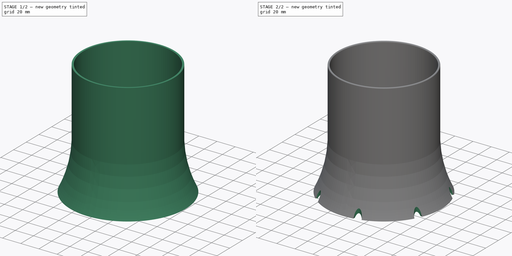
[diagram: build sequence overview — one tinted view per stage of 2, left to right]
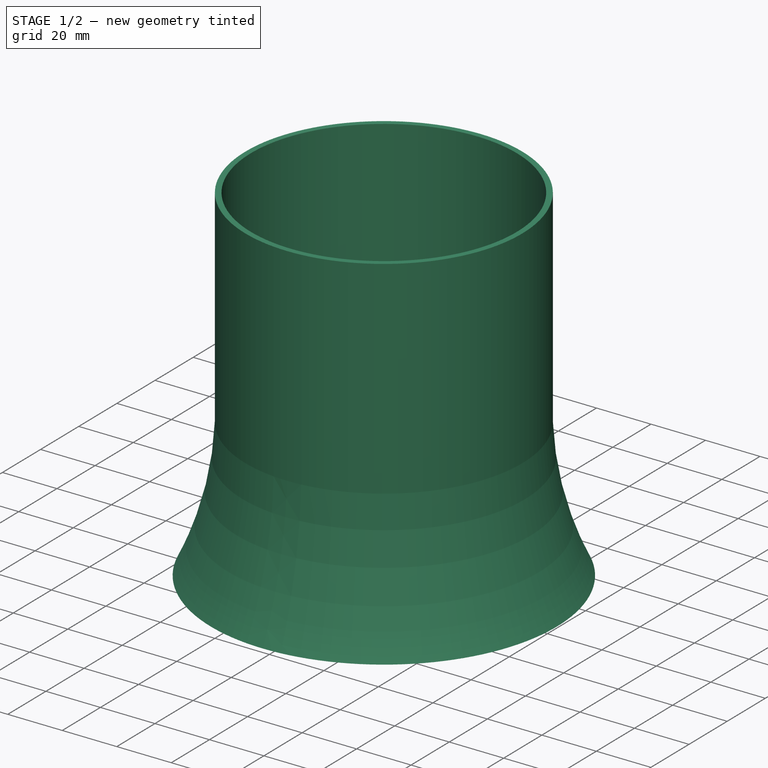
[diagram: stage 1 of 2 — iso view after this stage's code; geometry added in this stage tinted green]
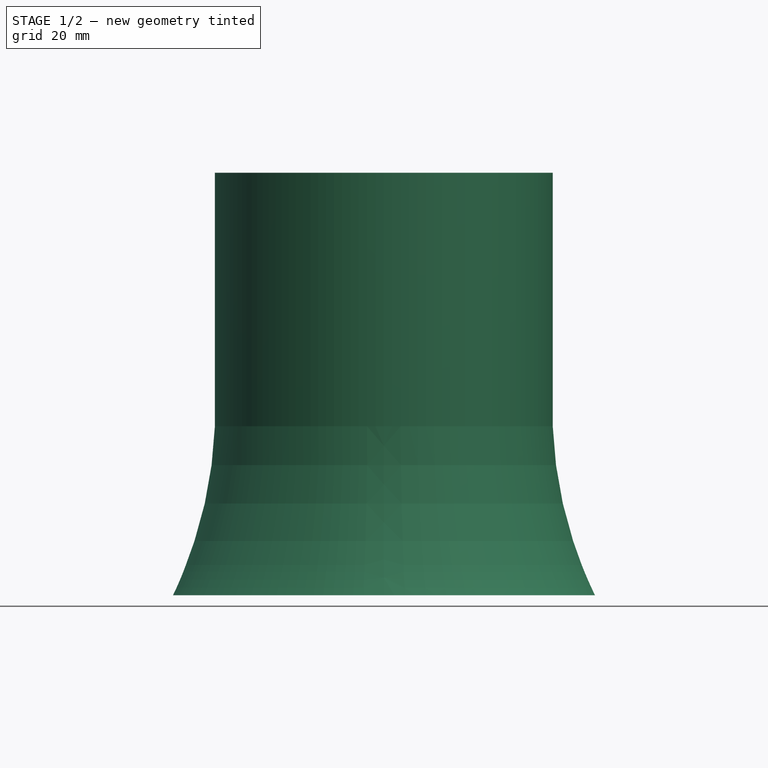
[diagram: stage 1 of 2 — front view after this stage's code; geometry added in this stage tinted green]
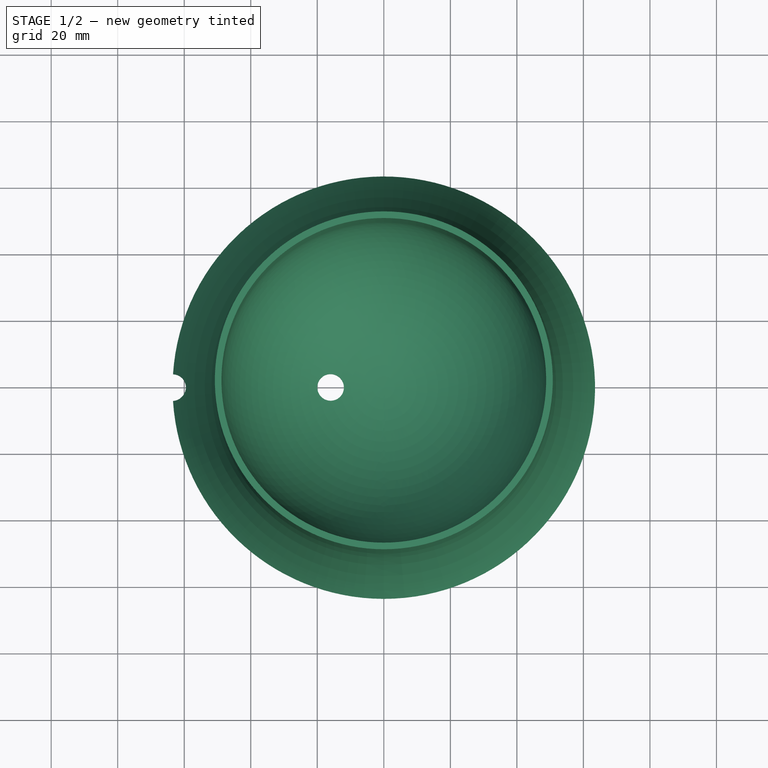
[diagram: stage 1 of 2 — top view after this stage's code; geometry added in this stage tinted green]
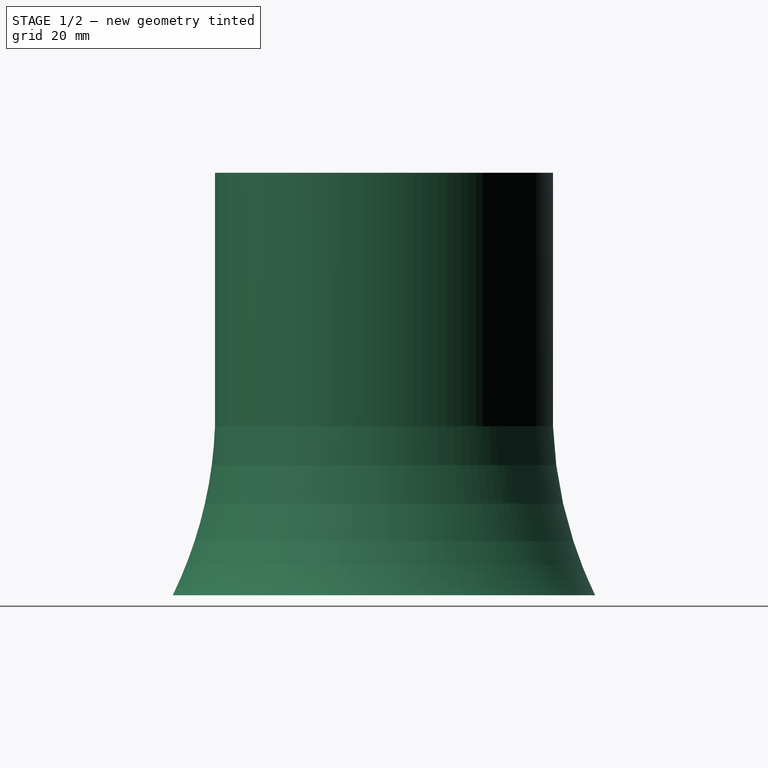
[diagram: stage 1 of 2 — right view after this stage's code; geometry added in this stage tinted green]
FCSTD DOCUMENT  (FreeCAD 2023.131R26244 +5365 (Git))
Label: Silverware Drain Caddy
License: All rights reserved
LicenseURL: http://en.wikipedia.org/wiki/All_rights_reserved
objects: Sketcher::SketchObject×2, Spreadsheet::Sheet×1, PartDesign::Revolution×1, PartDesign::Pocket×1, PartDesign::PolarPattern×1, PartDesign::Fillet×1, PartDesign::Body×1
note: 17 computed .brp shape members not serialized (recipe doc carries the construction recipe); baked Part::Feature solids carry a one-line shape summary decoded from their .brp

FEATURE [Spreadsheet::Sheet] Spreadsheet  label="Parameters"
  PythonMode = false
  ShowCells = 0
  TreeRank = 1
  cells = A2=Internal Diameter; B2(Internal_Diameter)=101.6; A3=Internal Base Offset; B3(Internal_Base_Offset)=0; A4=Outer Base Diameter; B4(Base_Diameter)=127; A5=Overall Height; B5(Height)=127; A6=Wall Thickness; B6(Wall_Thickness)=2; A7=Center Drain Hole Diameter; B7(Center_Hole_Diameter)=8; A8=Outer Relief Hole Count; B8(Base_Hole_Count)=7
FEATURE [Sketcher::SketchObject] Sketch  label="Profile Sketch"
  ArcFitTolerance = 1e-06
  AttachmentSupport = -> [YZ_Plane,XZ_Plane]
  ExternalBSplineMaxDegree = 5
  ExternalBSplineTolerance = 0.0001
  FullyConstrained = true
  InternalTolerance = 1e-06
  InvalidShape = false
  MakeInternals = false
  Placement = pos=(0,0,0) rot=(0.57735,0.57735,0.57735;2.0944rad)
  Support = -> [YZ_Plane,XZ_Plane]
  TreeRank = 12
  ValidateShape = true
  expr: Constraints[14] = max(<<Parameters>>.Height, <<Parameters>>.Internal_Diameter / 2 + <<Parameters>>.Internal_Base_Offset)
  expr: Constraints[15] = max(<<Parameters>>.Height, <<Parameters>>.Internal_Diameter / 2 + <<Parameters>>.Internal_Base_Offset)
  expr: Constraints[1] = <<Parameters>>.Internal_Diameter / 2 + <<Parameters>>.Internal_Base_Offset
  expr: Constraints[28] = <<Parameters>>.Base_Diameter / 2
  expr: Constraints[2] = <<Parameters>>.Internal_Diameter
  expr: Constraints[30] = <<Parameters>>.Base_Diameter
  expr: Constraints[33] = <<Parameters>>.Wall_Thickness
  expr: Constraints[35] = <<Parameters>>.Base_Diameter
  expr: Constraints[39] = <<Parameters>>.Wall_Thickness
  expr: Constraints[4] = <<Parameters>>.Internal_Diameter - <<Parameters>>.Wall_Thickness * 2
  expr: Constraints[7] = <<Parameters>>.Internal_Diameter / 2
  sketch-geometry (16):
    g0: ArcOfCircle CenterX=0 CenterY=50.8 CenterZ=0 NormalX=0 NormalY=0 NormalZ=1 AngleXU=0 Radius=50.8 StartAngle=3.35414 EndAngle=4.71239
    g1: ArcOfCircle CenterX=0 CenterY=50.8 CenterZ=0 NormalX=0 NormalY=0 NormalZ=1 AngleXU=0 Radius=48.8 StartAngle=3.14159 EndAngle=4.71239
    g2: LineSegment [constr] StartX=-50.8 StartY=50.8 StartZ=0 EndX=50.8 EndY=50.8 EndZ=0
    g3: GeomPoint [constr] X=-48.8 Y=50.8 Z=0
    g4: LineSegment StartX=-50.8 StartY=50.8 StartZ=0 EndX=-50.8 EndY=127 EndZ=0
    g5: LineSegment StartX=-48.8 StartY=50.8 StartZ=0 EndX=-48.8 EndY=127 EndZ=0
    g6: LineSegment StartX=-50.8 StartY=127 StartZ=0 EndX=-48.8 EndY=127 EndZ=0
    g7: GeomPoint [constr] X=0 Y=2 Z=0
    g8: GeomPoint [constr] X=0 Y=0 Z=0
    g9: LineSegment StartX=0 StartY=2 StartZ=0 EndX=0 EndY=0 EndZ=0
    g10: GeomPoint [constr] X=-48.8 Y=50.8 Z=0
    g11: LineSegment [constr] StartX=0 StartY=0 StartZ=0 EndX=-63.5 EndY=0 EndZ=0
    g12: ArcOfCircle CenterX=-177.8 CenterY=55.5625 CenterZ=0 NormalX=0 NormalY=0 NormalZ=1 AngleXU=0 Radius=127.089 StartAngle=5.83071 EndAngle=6.2457
    g13: LineSegment StartX=-63.5 StartY=0 StartZ=0 EndX=-61.5 EndY=0 EndZ=0
    g14: ArcOfCircle CenterX=-176.657 CenterY=55.8157 CenterZ=0 NormalX=0 NormalY=0 NormalZ=1 AngleXU=0 Radius=127.971 StartAngle=5.83186 EndAngle=6.15994
    g15: LineSegment [constr] StartX=-49.6569 StartY=40.0838 StartZ=0 EndX=-51.6569 EndY=40.0838 EndZ=0
  constraints (42):
    c: PointOnObject(g0,g-2)
    c: DistanceY(g-1,g0) = 50.8
    c: Diameter(g0) = 101.6
    c: Coincident(g1,g0)
    c: Diameter(g1) = 97.6
    c: PointOnObject(g0,g2)
    c: Symmetric(g2,g2,g-2)
    c: DistanceX(g-1,g2) = 50.8
    c: PointOnObject(g3,g1)
    c: PointOnObject(g3,g2)
    c: Coincident(g4,g2)
    c: Vertical(g4)
    c: Coincident(g5,g3)
    c: Vertical(g5)
    c: DistanceY(g-1,g5) = 127
    c: DistanceY(g-1,g4) = 127
    c: Coincident(g6,g4)
    c: Coincident(g6,g5)
    c: PointOnObject(g1,g2)
    c: Coincident(g9,g7)
    c: Coincident(g9,g8)
    c: Coincident(g1,g9)
    c: PointOnObject(g1,g-2)
    c: Coincident(g0,g9)
    c: PointOnObject(g0,g-2)
    c: Coincident(g10,g1)
    c: Coincident(g11,g-1)
    c: PointOnObject(g11,g-1)
    c: DistanceX(g11,g11) = 63.5
    c: Coincident(g12,g11)
    c: DistanceX(g12,g12) = 127
    c: Coincident(g13,g12)
    c: PointOnObject(g13,g11)
    c: DistanceX(g12,g13) = 2
    c: Coincident(g14,g13)
    c: DistanceX(g14,g14) = 127
    c: Coincident(g15,g14)
    c: PointOnObject(g15,g12)
    c: Horizontal(g15)
    c: DistanceX(g15,g14) = 2
    c: Coincident(g0,g14)
    c: Coincident(g12,g4)
FEATURE [PartDesign::Revolution] Revolution  label="Profile"
  AddSubType = 0
  Angle = 360
  Axis = (-2e-16,3e-16,1)
  Base = (0,0,0)
  ClaimChildren = false
  Fit = 0
  FitJoin = 0
  InnerFit = 0
  InnerFitJoin = 0
  InvalidShape = false
  Linearize = true
  NewSolid = false
  Profile = -> Sketch
  ReferenceAxis = -> Sketch [V_Axis]
  Suppress = false
  TreeRank = 13
  ValidateShape = true
  _ProfileBasedVersion = 1
FEATURE [Sketcher::SketchObject] Sketch001  label="Hole Sketch"
  ArcFitTolerance = 1e-06
  AttachmentOffset = pos=(0,0,-5) rot=(0,0,1;0rad)
  AttachmentSupport = -> [XY_Plane]
  ExternalBSplineMaxDegree = 5
  ExternalBSplineTolerance = 0.0001
  FullyConstrained = true
  InternalTolerance = 1e-06
  InvalidShape = false
  MakeInternals = false
  MapMode = 5
  Placement = pos=(0,0,-5) rot=(0,0,1;0rad)
  Support = -> [XY_Plane]
  TreeRank = 14
  ValidateShape = true
  expr: Constraints[0] = <<Parameters>>.Base_Diameter
  expr: Constraints[3] = <<Parameters>>.Center_Hole_Diameter
  expr: Constraints[7] = <<Parameters>>.Center_Hole_Diameter * 2
  sketch-geometry (3):
    g0: Circle [constr] CenterX=0 CenterY=0 CenterZ=0 NormalX=0 NormalY=0 NormalZ=1 AngleXU=0 Radius=63.5
    g1: Circle CenterX=-63.5 CenterY=0 CenterZ=0 NormalX=0 NormalY=0 NormalZ=1 AngleXU=0 Radius=4
    g2: Circle CenterX=-16 CenterY=0 CenterZ=0 NormalX=0 NormalY=0 NormalZ=1 AngleXU=0 Radius=4
  constraints (8):
    c: Diameter(g0) = 127
    c: PointOnObject(g1,g0)
    c: PointOnObject(g1,g-1)
    c: Diameter(g1) = 8
    c: Coincident(g0,g-1)
    c: Equal(g1,g2)
    c: PointOnObject(g2,g-1)
    c: DistanceX(g2,g0) = 16
FEATURE [PartDesign::Pocket] Pocket  label="Holes"
  AddSubType = 1
  AutoTaperInnerAngle = true
  BaseFeature = -> Revolution
  CheckUpToFaceLimits = true
  ClaimChildren = false
  Fit = 0
  FitJoin = 0
  InnerFit = 0
  InnerFitJoin = 0
  InvalidShape = false
  Length = 5
  Length2 = 100
  Linearize = true
  NewSolid = false
  Profile = -> Sketch001
  Reversed = true
  Suppress = false
  TaperInnerAngle = 0
  TaperInnerAngleRev = 0
  TreeRank = 15
  Type = 1
  ValidateShape = true
  _ProfileBasedVersion = 1
  _Version = 1
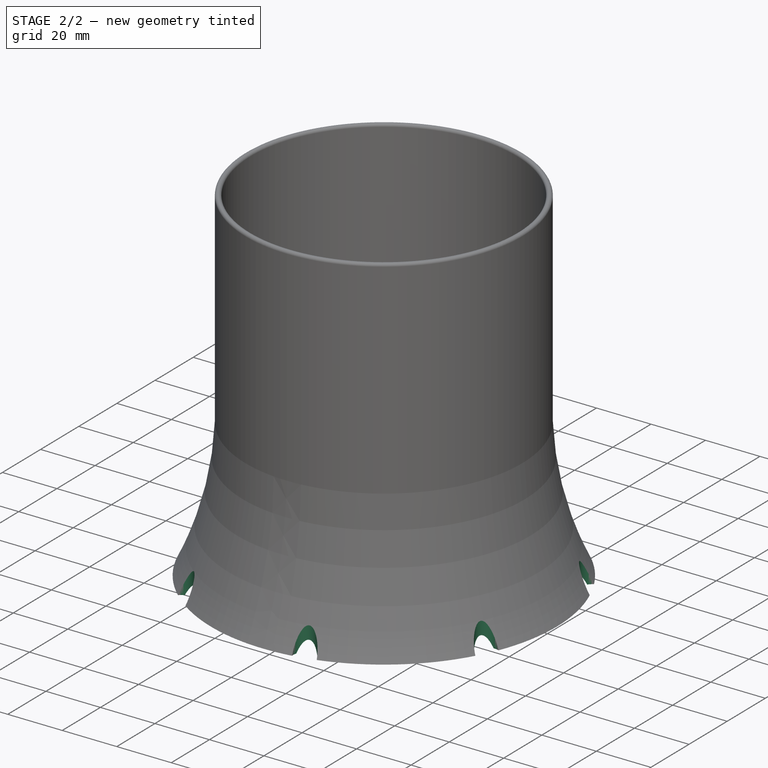
[diagram: stage 2 of 2 — iso view after this stage's code; geometry added in this stage tinted green]
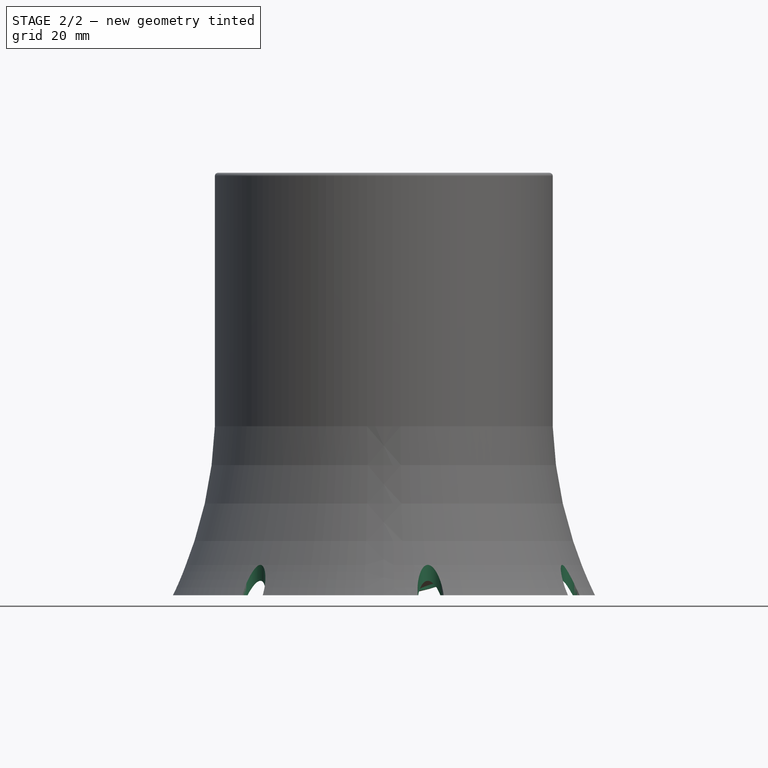
[diagram: stage 2 of 2 — front view after this stage's code; geometry added in this stage tinted green]
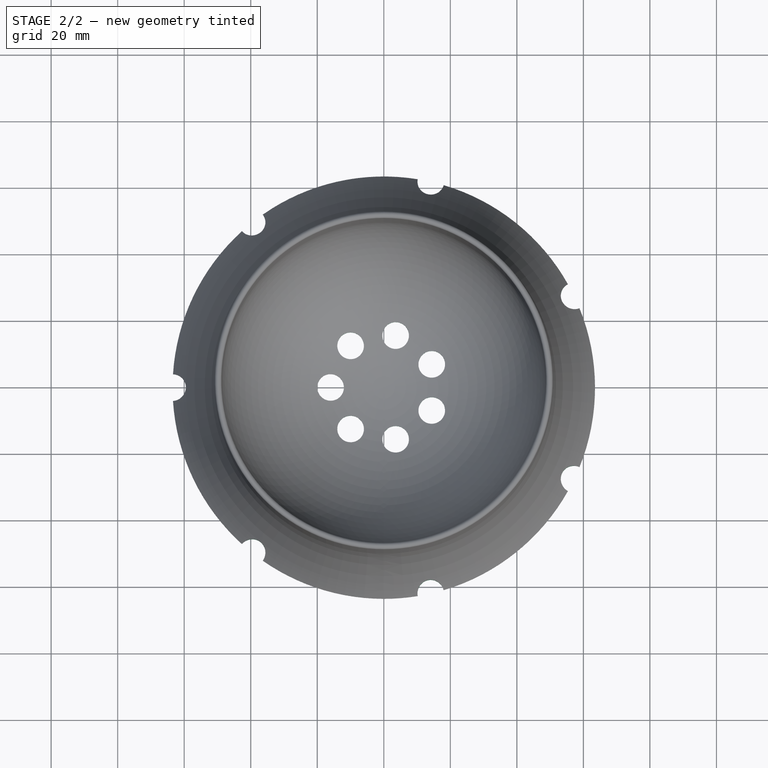
[diagram: stage 2 of 2 — top view after this stage's code; geometry added in this stage tinted green]
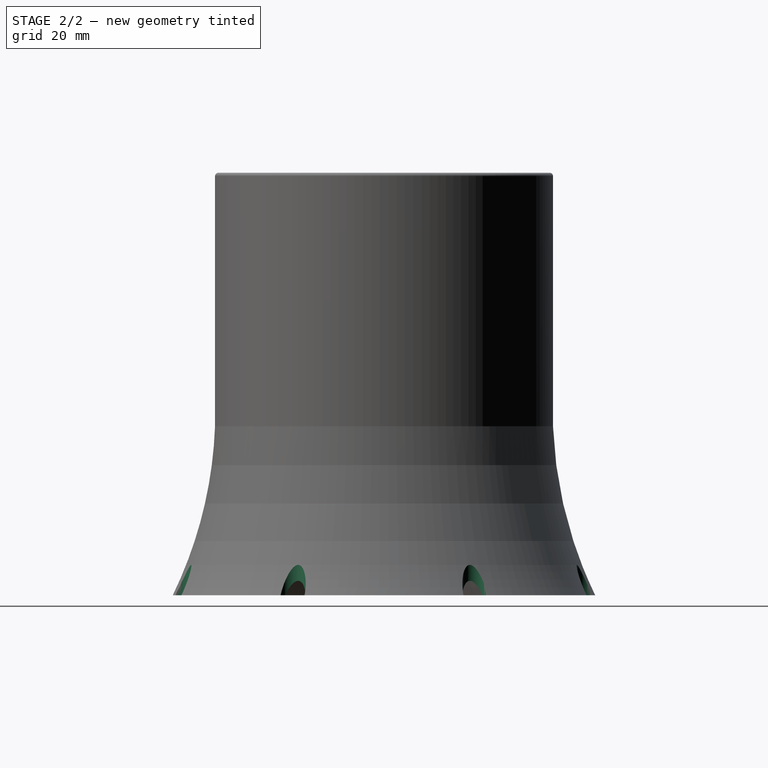
[diagram: stage 2 of 2 — right view after this stage's code; geometry added in this stage tinted green]
FEATURE [PartDesign::PolarPattern] PolarPattern
  AddSubType = 0
  Angle = 360
  Axis = -> Sketch001 [N_Axis]
  BaseFeature = -> Pocket
  CopyShape = false
  InvalidShape = false
  NewSolid = false
  Occurrences = 7
  OriginalSubs = -> [Pocket]
  Originals = -> [Pocket]
  ParallelTransform = true
  SubTransform = true
  Suppress = false
  TreeRank = 16
  ValidateShape = true
  _Version = 3
  expr: Occurrences = <<Parameters>>.Base_Hole_Count
FEATURE [PartDesign::Fillet] Fillet
  AddSubType = 0
  Base = -> PolarPattern [Face33]
  BaseFeature = -> PolarPattern
  InvalidShape = false
  NewSolid = false
  Radius = 0.99
  SupportTransform = false
  Suppress = false
  TreeRank = 17
  ValidateShape = true
  expr: Radius = <<Parameters>>.Wall_Thickness / 2 - 0.01
FEATURE [PartDesign::Body] Body
  AutoGroupSolids = false
  ClaimAllChildren = false
  ExportMode = 0
  Group = -> [Sketch,Revolution,Sketch001,Pocket,PolarPattern,Fillet]
  InvalidShape = false
  Origin = -> Origin
  Tip = -> Fillet
  TreeRank = 11
  ValidateShape = true
  _ExportChildren = -> [Revolution,Pocket,PolarPattern,Fillet]
  _GroupVersion = 1
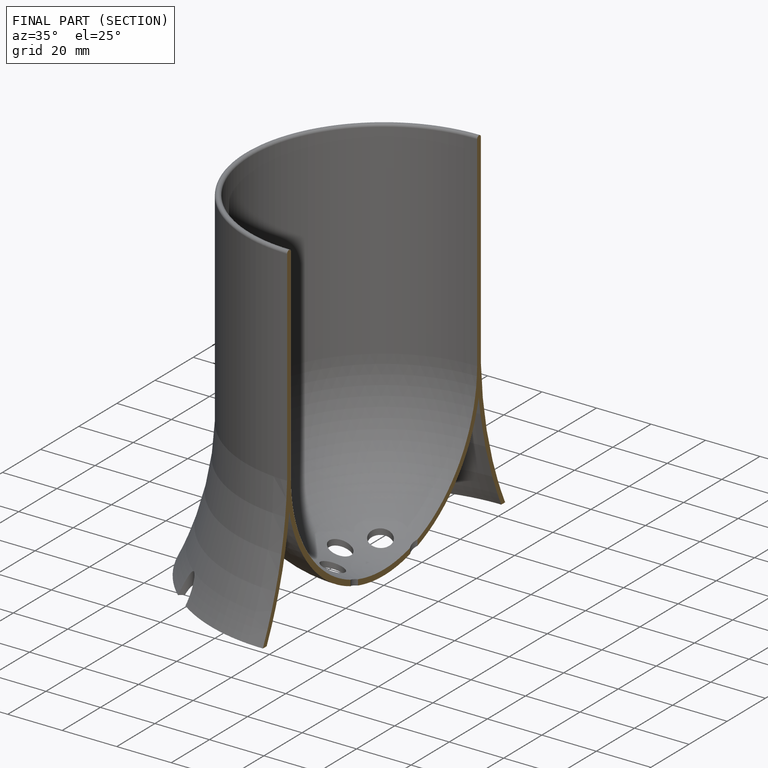
[diagram: finished part — half-section view (interior)]
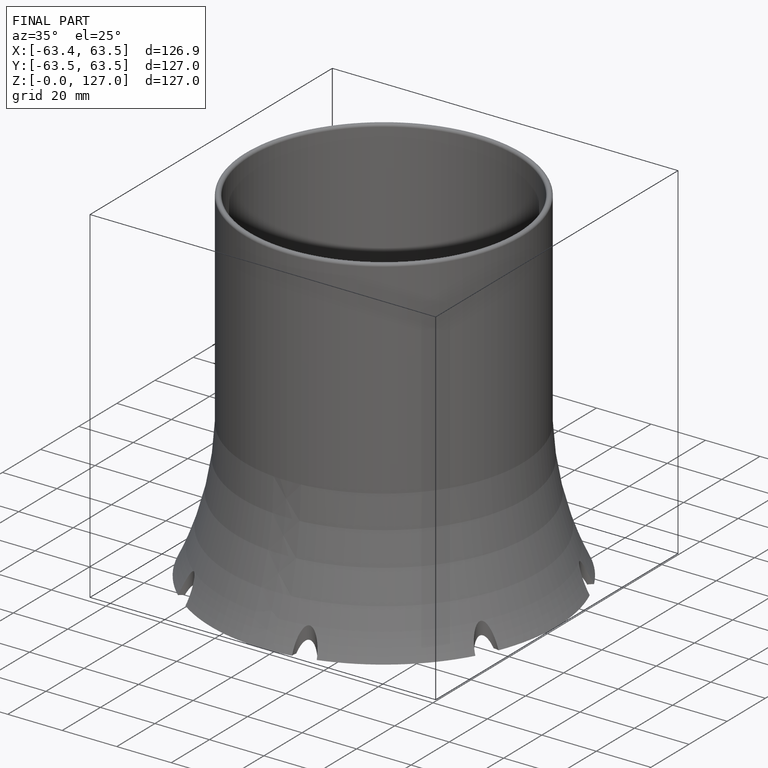
[diagram: finished part — iso view with bounding-box wireframe]
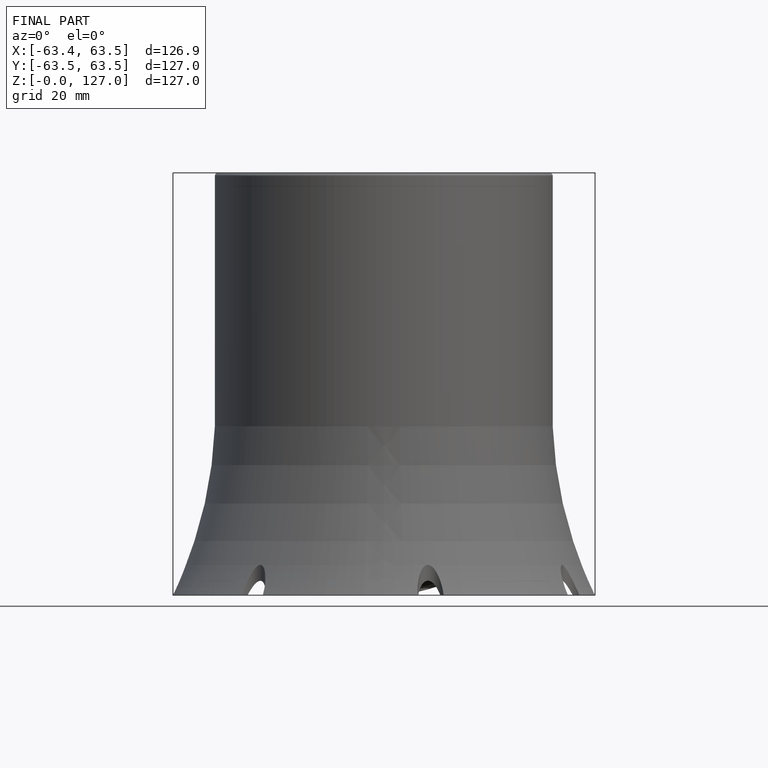
[diagram: finished part — front view with bounding-box wireframe]
